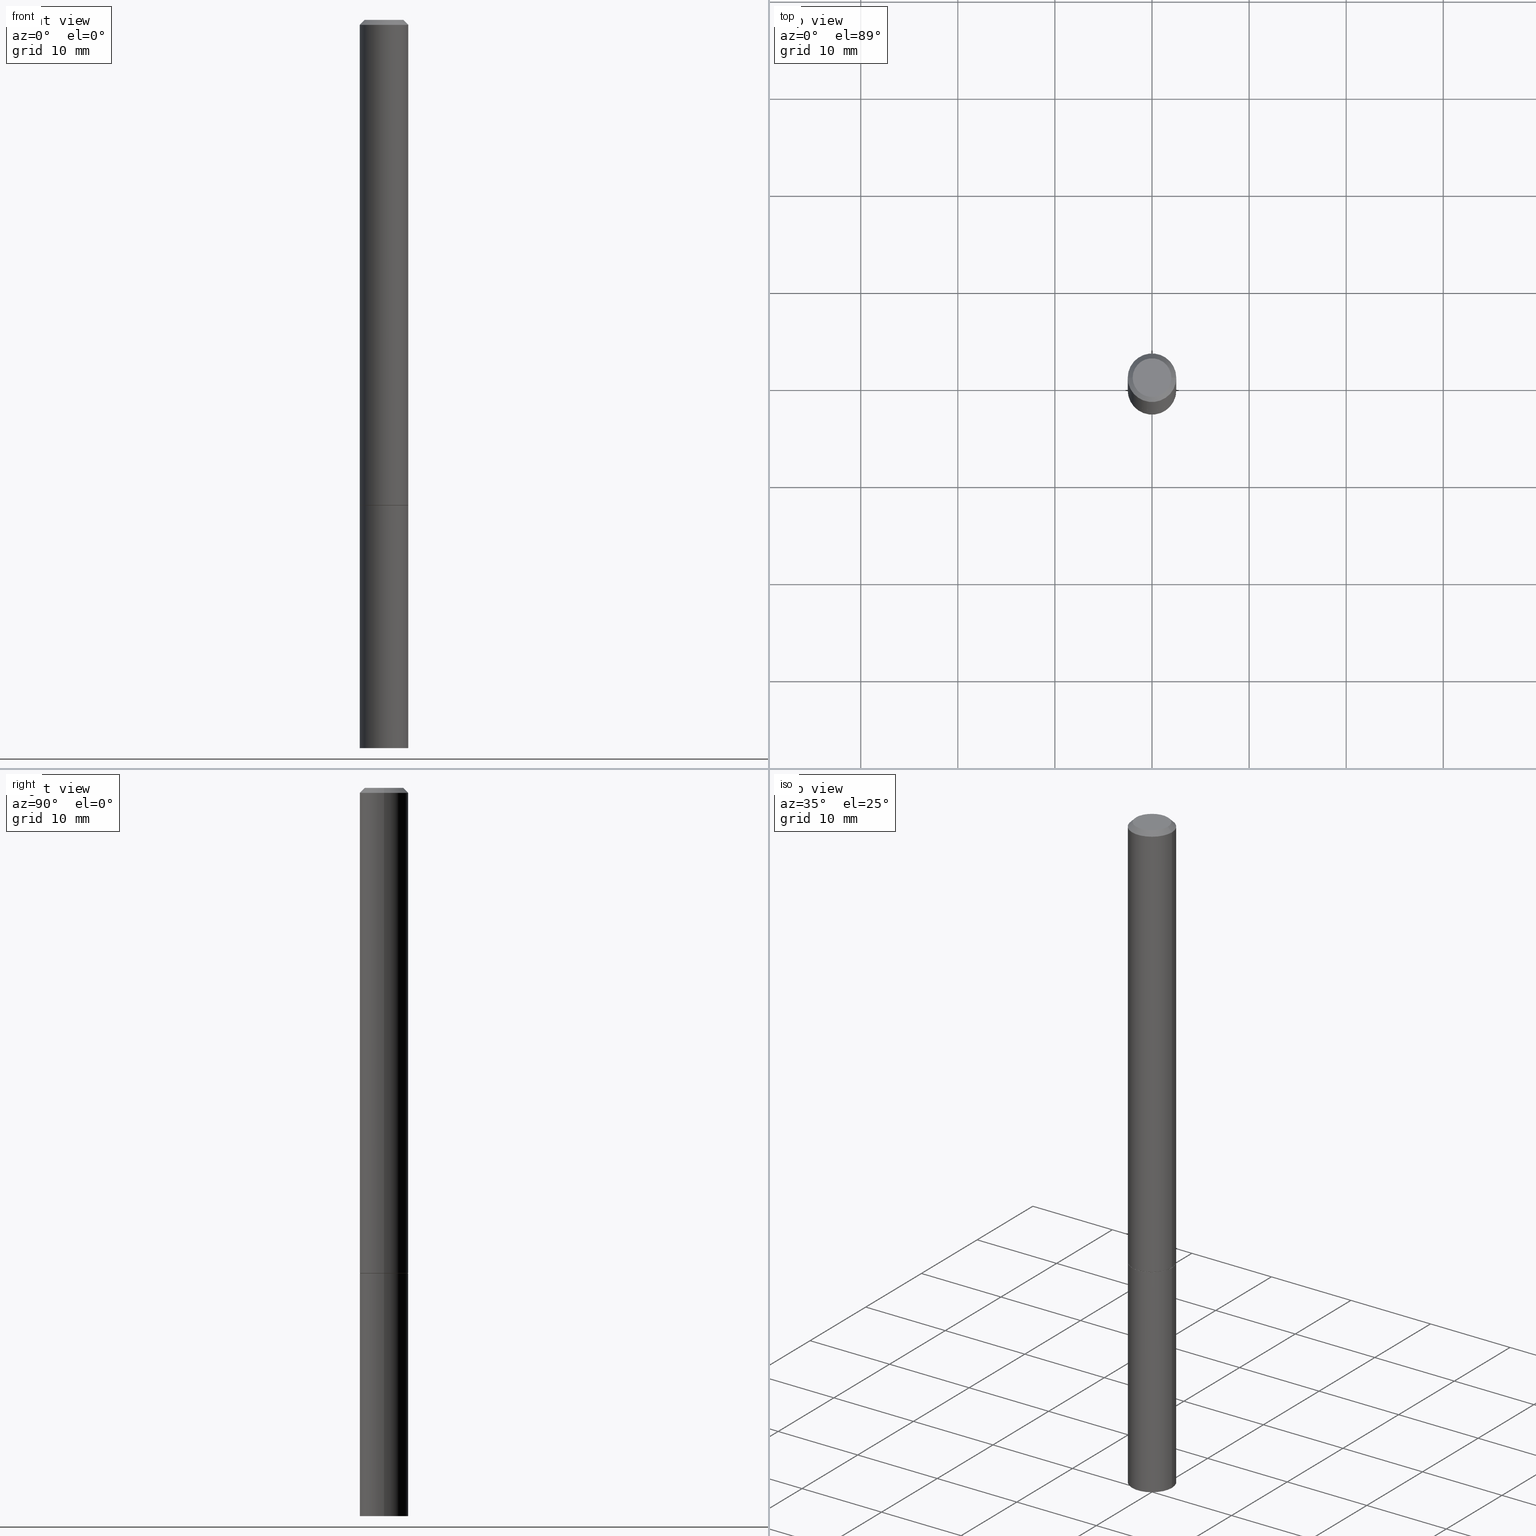
[diagram: canonical four-view strip — front | top / right | iso, engineering-drawing reading convention]
A machine part, canonical four-view strip (front | top / right | iso — engineering-drawing reading convention). The complete STEP part file that produces these views, byte-faithful:
ISO-10303-21;
HEADER;
FILE_DESCRIPTION (( 'STEP AP203' ),
    '1' );
FILE_NAME ('43507.STEP',
    '2024-02-28T04:51:19',
    ( '' ),
    ( '' ),
    'SwSTEP 2.0',
    'SolidWorks 2023',
    '' );
FILE_SCHEMA (( 'CONFIG_CONTROL_DESIGN' ));
ENDSEC;

DATA;
#1 =( NAMED_UNIT ( * ) SI_UNIT ( $, .STERADIAN. ) SOLID_ANGLE_UNIT ( ) );
#2 = ORIENTED_EDGE ( 'NONE', *, *, #101, .T. ) ;
#3 = EDGE_LOOP ( 'NONE', ( #132, #42 ) ) ;
#4 = CARTESIAN_POINT ( 'NONE',  ( 0.07844999999999976992, -6.417258612913216511E-16, -4.268512490096252041E-18 ) ) ;
#5 = DIRECTION ( 'NONE',  ( 1.000000000000000000, -6.982962677686264344E-15, 0.000000000000000000 ) ) ;
#6 = LOCAL_TIME ( 23, 51, 19.00000000000000000, #57 ) ;
#7 = ADVANCED_FACE ( 'NONE', ( #247 ), #28, .T. ) ;
#8 = DIMENSIONAL_EXPONENTS ( 1.000000000000000000, 0.000000000000000000, 0.000000000000000000, 0.000000000000000000, 0.000000000000000000, 0.000000000000000000, 0.000000000000000000 ) ;
#9 = CC_DESIGN_PERSON_AND_ORGANIZATION_ASSIGNMENT ( #170, #281, ( #107 ) ) ;
#10 = CALENDAR_DATE ( 2024, 27, 2 ) ;
#11 = DIRECTION ( 'NONE',  ( 2.438088387897960049E-29, -3.491481338843145188E-15, -1.000000000000000000 ) ) ;
#12 = PERSON_AND_ORGANIZATION ( #191, #80 ) ;
#13 = CYLINDRICAL_SURFACE ( 'NONE', #150, 0.09844999999999987095 ) ;
#14 = ORIENTED_EDGE ( 'NONE', *, *, #158, .F. ) ;
#15 = FACE_OUTER_BOUND ( 'NONE', #280, .T. ) ;
#16 = CIRCLE ( 'NONE', #225, 0.09844999999999999585 ) ;
#17 = PLANE ( 'NONE',  #349 ) ;
#18 = FACE_OUTER_BOUND ( 'NONE', #84, .T. ) ;
#19 = ADVANCED_FACE ( 'NONE', ( #193 ), #277, .T. ) ;
#20 = CARTESIAN_POINT ( 'NONE',  ( 4.813905344975441835E-29, -6.872981015512731707E-15, -1.968500000000000139 ) ) ;
#21 = DIRECTION ( 'NONE',  ( 1.000000000000000000, -6.982962677686266711E-15, 4.876176775795936353E-29 ) ) ;
#22 = VECTOR ( 'NONE', #160, 39.37007874015748143 ) ;
#23 = CARTESIAN_POINT ( 'NONE',  ( -0.09844999999999998197, -2.770130257119553156E-15, -1.967499999999999805 ) ) ;
#24 = DIRECTION ( 'NONE',  ( -2.445468806185136597E-29, 3.491481338843145583E-15, 1.000000000000000000 ) ) ;
#25 = PERSON_AND_ORGANIZATION ( #191, #80 ) ;
#26 = ORIENTED_EDGE ( 'NONE', *, *, #296, .F. ) ;
#27 = APPROVAL_STATUS ( 'not_yet_approved' ) ;
#28 = CYLINDRICAL_SURFACE ( 'NONE', #129, 0.09844999999999999585 ) ;
#29 = ADVANCED_FACE ( 'NONE', ( #318 ), #117, .T. ) ;
#30 = SECURITY_CLASSIFICATION_LEVEL ( 'unclassified' ) ;
#31 = CIRCLE ( 'NONE', #79, 0.09844999999999973217 ) ;
#32 = CARTESIAN_POINT ( 'NONE',  ( 4.813905344975441835E-29, -6.872981015512731707E-15, -1.968500000000000139 ) ) ;
#33 = DIRECTION ( 'NONE',  ( 1.000000000000000000, 0.000000000000000000, 0.000000000000000000 ) ) ;
#34 = MANIFOLD_SOLID_BREP ( 'Body-Move/Copy2[1]', #75 ) ;
#35 = LINE ( 'NONE', #95, #312 ) ;
#36 = AXIS2_PLACEMENT_3D ( 'NONE', #266, #74, #183 ) ;
#37 = EDGE_CURVE ( 'NONE', #53, #201, #44, .T. ) ;
#38 = APPLICATION_CONTEXT ( 'configuration controlled 3d designs of mechanical parts and assemblies' ) ;
#39 = CARTESIAN_POINT ( 'NONE',  ( 0.09844999999999999585, -1.099711877295425267E-14, -2.952799999999999869 ) ) ;
#40 = AXIS2_PLACEMENT_3D ( 'NONE', #20, #356, #155 ) ;
#41 = AXIS2_PLACEMENT_3D ( 'NONE', #32, #116, #63 ) ;
#42 = ORIENTED_EDGE ( 'NONE', *, *, #269, .F. ) ;
#43 = APPROVAL_STATUS ( 'not_yet_approved' ) ;
#44 = LINE ( 'NONE', #205, #187 ) ;
#45 = DIRECTION ( 'NONE',  ( -2.438088387897960049E-29, 3.491481338843145188E-15, 1.000000000000000000 ) ) ;
#46 = DIRECTION ( 'NONE',  ( -0.7071067811865466846, 2.468850131082247989E-15, -0.7071067811865483499 ) ) ;
#47 = AXIS2_PLACEMENT_3D ( 'NONE', #185, #220, #77 ) ;
#48 = DIRECTION ( 'NONE',  ( 1.000000000000000000, -6.982962677686265922E-15, 4.876126812019107680E-29 ) ) ;
#49 = ADVANCED_FACE ( 'NONE', ( #286 ), #127, .T. ) ;
#50 = DIRECTION ( 'NONE',  ( 1.000000000000000000, -6.982962677686274599E-15, 0.000000000000000000 ) ) ;
#51 = EDGE_LOOP ( 'NONE', ( #339, #309 ) ) ;
#52 = DIRECTION ( 'NONE',  ( 1.000000000000000000, -6.982962677686265922E-15, 4.876176775795935793E-29 ) ) ;
#53 = VERTEX_POINT ( 'NONE', #39 ) ;
#54 = CC_DESIGN_APPROVAL ( #260, ( #326 ) ) ;
#55 = ORIENTED_EDGE ( 'NONE', *, *, #96, .F. ) ;
#56 = ADVANCED_BREP_SHAPE_REPRESENTATION ( '43507', ( #34, #140, #270 ), #313 ) ;
#57 = COORDINATED_UNIVERSAL_TIME_OFFSET ( 5, 0, .BEHIND. ) ;
#58 = ORIENTED_EDGE ( 'NONE', *, *, #252, .F. ) ;
#59 = PERSON_AND_ORGANIZATION_ROLE ( 'creator' ) ;
#60 = CC_DESIGN_PERSON_AND_ORGANIZATION_ASSIGNMENT ( #25, #285, ( #71 ) ) ;
#61 = EDGE_LOOP ( 'NONE', ( #161, #88, #164, #26 ) ) ;
#62 = VECTOR ( 'NONE', #46, 39.37007874015748143 ) ;
#63 = DIRECTION ( 'NONE',  ( 1.000000000000000000, -6.982962677686264344E-15, 0.000000000000000000 ) ) ;
#64 = FACE_OUTER_BOUND ( 'NONE', #51, .T. ) ;
#65 = APPROVAL ( #198, 'UNSPECIFIED' ) ;
#66 = DATE_AND_TIME ( #10, #212 ) ;
#67 = EDGE_CURVE ( 'NONE', #265, #90, #184, .T. ) ;
#68 = DIRECTION ( 'NONE',  ( -2.445468806185136597E-29, 3.491481338843145583E-15, 1.000000000000000000 ) ) ;
#69 = AXIS2_PLACEMENT_3D ( 'NONE', #275, #108, #50 ) ;
#70 = LOCAL_TIME ( 23, 51, 19.00000000000000000, #112 ) ;
#71 = PRODUCT_DEFINITION ( 'UNKNOWN', '', #107, #282 ) ;
#72 = ORIENTED_EDGE ( 'NONE', *, *, #269, .T. ) ;
#73 = CALENDAR_DATE ( 2024, 27, 2 ) ;
#74 = DIRECTION ( 'NONE',  ( -2.445468806185136597E-29, 3.491481338843145583E-15, 1.000000000000000000 ) ) ;
#75 = CLOSED_SHELL ( 'NONE', ( #7, #49, #91, #19 ) ) ;
#76 = AXIS2_PLACEMENT_3D ( 'NONE', #162, #186, #137 ) ;
#77 = DIRECTION ( 'NONE',  ( 1.000000000000000000, -6.982962677686274599E-15, 0.000000000000000000 ) ) ;
#78 = CARTESIAN_POINT ( 'NONE',  ( 4.813905344975440714E-29, -6.872981015512730918E-15, -1.968499999999999694 ) ) ;
#79 = AXIS2_PLACEMENT_3D ( 'NONE', #273, #241, #134 ) ;
#80 = ORGANIZATION ( 'UNSPECIFIED', 'UNSPECIFIED', '' ) ;
#81 = CARTESIAN_POINT ( 'NONE',  ( -0.09844999999999999585, 6.995293233558186035E-16, -4.842691596355954042E-30 ) ) ;
#82 = VERTEX_POINT ( 'NONE', #178 ) ;
#83 = PLANE ( 'NONE',  #122 ) ;
#84 = EDGE_LOOP ( 'NONE', ( #299, #2, #14, #229 ) ) ;
#85 = LINE ( 'NONE', #295, #62 ) ;
#86 = VERTEX_POINT ( 'NONE', #231 ) ;
#87 = PERSON_AND_ORGANIZATION ( #191, #80 ) ;
#88 = ORIENTED_EDGE ( 'NONE', *, *, #133, .T. ) ;
#89 = APPROVAL_DATE_TIME ( #340, #65 ) ;
#90 = VERTEX_POINT ( 'NONE', #314 ) ;
#91 = ADVANCED_FACE ( 'NONE', ( #64 ), #258, .F. ) ;
#92 = VECTOR ( 'NONE', #331, 39.37007874015748143 ) ;
#93 = CIRCLE ( 'NONE', #354, 0.09844999999999999585 ) ;
#94 = CC_DESIGN_PERSON_AND_ORGANIZATION_ASSIGNMENT ( #12, #317, ( #326 ) ) ;
#95 = CARTESIAN_POINT ( 'NONE',  ( -0.09744999999999999496, -6.180557119514514605E-15, -1.968500000000000139 ) ) ;
#96 = EDGE_CURVE ( 'NONE', #86, #265, #196, .T. ) ;
#97 = CARTESIAN_POINT ( 'NONE',  ( -0.09844999999999999585, -7.891784233068567007E-15, -1.968499999999999694 ) ) ;
#98 = DIRECTION ( 'NONE',  ( 1.000000000000000000, -6.982962677686266711E-15, 4.876176775795936353E-29 ) ) ;
#99 = CLOSED_SHELL ( 'NONE', ( #291, #29, #105, #321, #124, #173, #307, #152 ) ) ;
#100 = ORIENTED_EDGE ( 'NONE', *, *, #101, .F. ) ;
#101 = EDGE_CURVE ( 'NONE', #86, #267, #35, .T. ) ;
#102 = CARTESIAN_POINT ( 'NONE',  ( 4.890937612370279289E-31, -6.982962677686299005E-17, -0.02000000000000002470 ) ) ;
#103 = LINE ( 'NONE', #214, #236 ) ;
#104 = DIRECTION ( 'NONE',  ( 1.000000000000000000, -6.982962677686265922E-15, 0.000000000000000000 ) ) ;
#105 = ADVANCED_FACE ( 'NONE', ( #323 ), #330, .T. ) ;
#106 = VERTEX_POINT ( 'NONE', #97 ) ;
#107 = PRODUCT_DEFINITION_FORMATION_WITH_SPECIFIED_SOURCE ( 'ANY', '', #288, .NOT_KNOWN. ) ;
#108 = DIRECTION ( 'NONE',  ( -2.445468806185136597E-29, 3.491481338843145583E-15, 1.000000000000000000 ) ) ;
#109 = ORIENTED_EDGE ( 'NONE', *, *, #37, .T. ) ;
#110 = DIRECTION ( 'NONE',  ( -2.445468806185136597E-29, 3.491481338843145583E-15, 1.000000000000000000 ) ) ;
#111 = CARTESIAN_POINT ( 'NONE',  ( 0.000000000000000000, 0.000000000000000000, 0.000000000000000000 ) ) ;
#112 = COORDINATED_UNIVERSAL_TIME_OFFSET ( 5, 0, .BEHIND. ) ;
#113 = ORIENTED_EDGE ( 'NONE', *, *, #37, .F. ) ;
#114 = CARTESIAN_POINT ( 'NONE',  ( -0.09844999999999973217, 6.176430488413481772E-16, -0.02000000000000002470 ) ) ;
#115 = ORIENTED_EDGE ( 'NONE', *, *, #366, .F. ) ;
#116 = DIRECTION ( 'NONE',  ( -2.445468806185136597E-29, 3.491481338843145583E-15, 1.000000000000000000 ) ) ;
#117 = CYLINDRICAL_SURFACE ( 'NONE', #253, 0.09844999999999987095 ) ;
#118 = DATE_TIME_ROLE ( 'creation_date' ) ;
#119 = EDGE_CURVE ( 'NONE', #267, #90, #344, .T. ) ;
#120 = DIRECTION ( 'NONE',  ( -2.445468806185136877E-29, 3.491481338843145188E-15, 1.000000000000000000 ) ) ;
#121 = MECHANICAL_CONTEXT ( 'NONE', #38, 'mechanical' ) ;
#122 = AXIS2_PLACEMENT_3D ( 'NONE', #192, #45, #52 ) ;
#123 = DIRECTION ( 'NONE',  ( 2.445468806185136597E-29, -3.491481338843145583E-15, -1.000000000000000000 ) ) ;
#124 = ADVANCED_FACE ( 'NONE', ( #294 ), #13, .T. ) ;
#125 = CC_DESIGN_PERSON_AND_ORGANIZATION_ASSIGNMENT ( #175, #139, ( #288 ) ) ;
#126 = AXIS2_PLACEMENT_3D ( 'NONE', #111, #24, #223 ) ;
#127 = PLANE ( 'NONE',  #148 ) ;
#128 = LINE ( 'NONE', #81, #245 ) ;
#129 = AXIS2_PLACEMENT_3D ( 'NONE', #274, #254, #21 ) ;
#130 = DIRECTION ( 'NONE',  ( 2.438088387897960049E-29, -3.491481338843145188E-15, -1.000000000000000000 ) ) ;
#131 = DIRECTION ( 'NONE',  ( -1.000000000000000000, 6.982962677686265922E-15, -4.876176775795935793E-29 ) ) ;
#132 = ORIENTED_EDGE ( 'NONE', *, *, #284, .F. ) ;
#133 = EDGE_CURVE ( 'NONE', #359, #365, #327, .T. ) ;
#134 = DIRECTION ( 'NONE',  ( 1.000000000000000000, -6.982962677686266711E-15, 0.000000000000000000 ) ) ;
#135 = ORIENTED_EDGE ( 'NONE', *, *, #284, .T. ) ;
#136 = LOCAL_TIME ( 23, 51, 19.00000000000000000, #209 ) ;
#137 = DIRECTION ( 'NONE',  ( 1.000000000000000000, -6.982962677686265922E-15, 4.876126812019107680E-29 ) ) ;
#138 = VERTEX_POINT ( 'NONE', #303 ) ;
#139 = PERSON_AND_ORGANIZATION_ROLE ( 'design_owner' ) ;
#140 = MANIFOLD_SOLID_BREP ( 'Body-Move/Copy2[2]', #99 ) ;
#141 = ORIENTED_EDGE ( 'NONE', *, *, #296, .T. ) ;
#142 = CARTESIAN_POINT ( 'NONE',  ( 0.000000000000000000, 0.000000000000000000, 0.000000000000000000 ) ) ;
#143 = ORIENTED_EDGE ( 'NONE', *, *, #194, .T. ) ;
#144 = DIRECTION ( 'NONE',  ( -2.445468806185136597E-29, 3.491481338843145583E-15, 1.000000000000000000 ) ) ;
#145 = PERSON_AND_ORGANIZATION ( #191, #80 ) ;
#146 = APPLICATION_CONTEXT ( 'configuration controlled 3d designs of mechanical parts and assemblies' ) ;
#147 = APPLICATION_PROTOCOL_DEFINITION ( 'international standard', 'config_control_design', 1994, #38 ) ;
#148 = AXIS2_PLACEMENT_3D ( 'NONE', #342, #287, #289 ) ;
#149 = PRODUCT_DEFINITION_SHAPE ( 'NONE', 'NONE',  #71 ) ;
#150 = AXIS2_PLACEMENT_3D ( 'NONE', #238, #353, #98 ) ;
#151 = DIRECTION ( 'NONE',  ( 0.7071067811864267805, -2.468850131080992517E-15, 0.7071067811866682540 ) ) ;
#152 = ADVANCED_FACE ( 'NONE', ( #271 ), #17, .F. ) ;
#153 = COORDINATED_UNIVERSAL_TIME_OFFSET ( 5, 0, .BEHIND. ) ;
#154 = DIRECTION ( 'NONE',  ( 1.000000000000000000, -6.982962677686266711E-15, 4.876176775795936353E-29 ) ) ;
#155 = DIRECTION ( 'NONE',  ( 1.000000000000000000, -6.982962677686264344E-15, 0.000000000000000000 ) ) ;
#156 = FACE_OUTER_BOUND ( 'NONE', #279, .T. ) ;
#157 = AXIS2_PLACEMENT_3D ( 'NONE', #298, #244, #48 ) ;
#158 = EDGE_CURVE ( 'NONE', #90, #267, #211, .T. ) ;
#159 = CARTESIAN_POINT ( 'NONE',  ( 4.890937612370279289E-31, -6.982962677686299005E-17, -0.02000000000000002470 ) ) ;
#160 = DIRECTION ( 'NONE',  ( 0.7071067811865466846, -7.319954787623252890E-15, -0.7071067811865483499 ) ) ;
#161 = ORIENTED_EDGE ( 'NONE', *, *, #256, .F. ) ;
#162 = CARTESIAN_POINT ( 'NONE',  ( 1.043851414335219820E-46, -1.490343170380447200E-32, -4.268512490100411279E-18 ) ) ;
#163 = AXIS2_PLACEMENT_3D ( 'NONE', #210, #11, #345 ) ;
#164 = ORIENTED_EDGE ( 'NONE', *, *, #235, .T. ) ;
#165 = CIRCLE ( 'NONE', #76, 0.07844999999999976992 ) ;
#166 = EDGE_CURVE ( 'NONE', #336, #365, #31, .T. ) ;
#167 = EDGE_LOOP ( 'NONE', ( #334, #306, #141, #199 ) ) ;
#168 =( LENGTH_UNIT ( ) NAMED_UNIT ( * ) SI_UNIT ( $, .METRE. ) );
#169 = ORIENTED_EDGE ( 'NONE', *, *, #239, .T. ) ;
#170 = PERSON_AND_ORGANIZATION ( #191, #80 ) ;
#171 = ORIENTED_EDGE ( 'NONE', *, *, #119, .T. ) ;
#172 = CONICAL_SURFACE ( 'NONE', #40, 0.09744999999999999496, 0.7853981633972775267 ) ;
#173 = ADVANCED_FACE ( 'NONE', ( #15 ), #172, .T. ) ;
#174 = CC_DESIGN_APPROVAL ( #301, ( #71 ) ) ;
#175 = PERSON_AND_ORGANIZATION ( #191, #80 ) ;
#176 = DIRECTION ( 'NONE',  ( -2.445468806185136597E-29, 3.491481338843145583E-15, 1.000000000000000000 ) ) ;
#177 = CARTESIAN_POINT ( 'NONE',  ( 4.813905344975440714E-29, -6.872981015512730918E-15, -1.968499999999999694 ) ) ;
#178 = CARTESIAN_POINT ( 'NONE',  ( -0.09844999999999999585, -7.891784233068567007E-15, -2.952799999999999869 ) ) ;
#179 = DATE_AND_TIME ( #73, #136 ) ;
#180 = AXIS2_PLACEMENT_3D ( 'NONE', #102, #110, #222 ) ;
#181 = APPROVAL_DATE_TIME ( #66, #260 ) ;
#182 = CONICAL_SURFACE ( 'NONE', #208, 0.09844999999999973217, 0.7853981633974471688 ) ;
#183 = DIRECTION ( 'NONE',  ( 1.000000000000000000, -6.982962677686265922E-15, 0.000000000000000000 ) ) ;
#184 = LINE ( 'NONE', #213, #325 ) ;
#185 = CARTESIAN_POINT ( 'NONE',  ( 7.220980290903470182E-29, -1.030964609733603853E-14, -2.952799999999999869 ) ) ;
#186 = DIRECTION ( 'NONE',  ( -2.445468806185136597E-29, 3.491481338843145583E-15, 1.000000000000000000 ) ) ;
#187 = VECTOR ( 'NONE', #120, 39.37007874015748143 ) ;
#188 = EDGE_LOOP ( 'NONE', ( #283, #72, #109, #115 ) ) ;
#189 = CARTESIAN_POINT ( 'NONE',  ( -0.09844999999999987095, 6.995293233558177160E-16, -4.842691596355948437E-30 ) ) ;
#190 = EDGE_LOOP ( 'NONE', ( #341, #171, #226, #304 ) ) ;
#191 = PERSON ( 'UNSPECIFIED', 'UNSPECIFIED', 'UNSPECIFIED', ('UNSPECIFIED'), ('UNSPECIFIED'), ('UNSPECIFIED') ) ;
#192 = CARTESIAN_POINT ( 'NONE',  ( 4.813905344975441835E-29, -6.872981015512731707E-15, -1.968500000000000139 ) ) ;
#193 = FACE_OUTER_BOUND ( 'NONE', #188, .T. ) ;
#194 = EDGE_CURVE ( 'NONE', #82, #106, #128, .T. ) ;
#195 = CARTESIAN_POINT ( 'NONE',  ( 0.09844999999999973217, -7.452456546574684343E-16, -0.02000000000000002470 ) ) ;
#196 = CIRCLE ( 'NONE', #263, 0.09744999999999999496 ) ;
#197 = EDGE_LOOP ( 'NONE', ( #243, #249 ) ) ;
#198 = APPROVAL_STATUS ( 'not_yet_approved' ) ;
#199 = ORIENTED_EDGE ( 'NONE', *, *, #166, .T. ) ;
#200 = PERSON_AND_ORGANIZATION ( #191, #80 ) ;
#201 = VERTEX_POINT ( 'NONE', #240 ) ;
#202 = DIRECTION ( 'NONE',  ( 0.000000000000000000, 0.000000000000000000, 1.000000000000000000 ) ) ;
#203 = AXIS2_PLACEMENT_3D ( 'NONE', #362, #333, #335 ) ;
#204 =( CONVERSION_BASED_UNIT ( 'INCH', #305 ) LENGTH_UNIT ( ) NAMED_UNIT ( #8 ) );
#205 = CARTESIAN_POINT ( 'NONE',  ( 0.09844999999999999585, -6.874726756182129545E-16, 4.800596035771099214E-30 ) ) ;
#206 = UNCERTAINTY_MEASURE_WITH_UNIT (LENGTH_MEASURE( 1.000000000000000082E-05 ), #204, 'distance_accuracy_value', 'NONE');
#207 = CIRCLE ( 'NONE', #47, 0.09844999999999999585 ) ;
#208 = AXIS2_PLACEMENT_3D ( 'NONE', #159, #242, #358 ) ;
#209 = COORDINATED_UNIVERSAL_TIME_OFFSET ( 5, 0, .BEHIND. ) ;
#210 = CARTESIAN_POINT ( 'NONE',  ( 6.874726756182609764E-16, 0.09844999999999311247, -1.968500000000000139 ) ) ;
#211 = CIRCLE ( 'NONE', #232, 0.09844999999999999585 ) ;
#212 = LOCAL_TIME ( 23, 51, 19.00000000000000000, #153 ) ;
#213 = CARTESIAN_POINT ( 'NONE',  ( 0.09744999999999999496, -7.553470728453258253E-15, -1.968500000000000139 ) ) ;
#214 = CARTESIAN_POINT ( 'NONE',  ( 0.09844999999999987095, -6.874726756182120670E-16, 4.800596035771092908E-30 ) ) ;
#215 = DIRECTION ( 'NONE',  ( -2.445468806185136877E-29, 3.491481338843145188E-15, 1.000000000000000000 ) ) ;
#216 = DIRECTION ( 'NONE',  ( -2.445468806185136877E-29, 3.491481338843145188E-15, 1.000000000000000000 ) ) ;
#217 = EDGE_CURVE ( 'NONE', #90, #365, #103, .T. ) ;
#218 = CIRCLE ( 'NONE', #69, 0.09844999999999999585 ) ;
#219 = ORIENTED_EDGE ( 'NONE', *, *, #119, .F. ) ;
#220 = DIRECTION ( 'NONE',  ( -2.445468806185136597E-29, 3.491481338843145583E-15, 1.000000000000000000 ) ) ;
#221 = ORIENTED_EDGE ( 'NONE', *, *, #158, .T. ) ;
#222 = DIRECTION ( 'NONE',  ( 1.000000000000000000, -6.982962677686266711E-15, 0.000000000000000000 ) ) ;
#223 = DIRECTION ( 'NONE',  ( 1.000000000000000000, -6.982962677686266711E-15, 4.876176775795936353E-29 ) ) ;
#224 = CALENDAR_DATE ( 2024, 27, 2 ) ;
#225 = AXIS2_PLACEMENT_3D ( 'NONE', #78, #297, #328 ) ;
#226 = ORIENTED_EDGE ( 'NONE', *, *, #217, .T. ) ;
#227 = CC_DESIGN_APPROVAL ( #65, ( #107 ) ) ;
#228 = CALENDAR_DATE ( 2024, 27, 2 ) ;
#229 = ORIENTED_EDGE ( 'NONE', *, *, #67, .F. ) ;
#230 = APPROVAL_ROLE ( '' ) ;
#231 = CARTESIAN_POINT ( 'NONE',  ( -0.09744999999999999496, -6.175258665166291414E-15, -1.968500000000000139 ) ) ;
#232 = AXIS2_PLACEMENT_3D ( 'NONE', #272, #329, #104 ) ;
#233 = CIRCLE ( 'NONE', #41, 0.09744999999999999496 ) ;
#234 = CARTESIAN_POINT ( 'NONE',  ( 4.813905344975441835E-29, -6.872981015512731707E-15, -1.968500000000000139 ) ) ;
#235 = EDGE_CURVE ( 'NONE', #365, #336, #290, .T. ) ;
#236 = VECTOR ( 'NONE', #215, 39.37007874015748143 ) ;
#237 = LOCAL_TIME ( 23, 51, 19.00000000000000000, #278 ) ;
#238 = CARTESIAN_POINT ( 'NONE',  ( 0.000000000000000000, 0.000000000000000000, 0.000000000000000000 ) ) ;
#239 = EDGE_CURVE ( 'NONE', #267, #336, #355, .T. ) ;
#240 = CARTESIAN_POINT ( 'NONE',  ( 0.09844999999999999585, -7.560453691130944267E-15, -1.968499999999999694 ) ) ;
#241 = DIRECTION ( 'NONE',  ( -2.445468806185136597E-29, 3.491481338843145583E-15, 1.000000000000000000 ) ) ;
#242 = DIRECTION ( 'NONE',  ( 2.445468806185136597E-29, -3.491481338843145583E-15, -1.000000000000000000 ) ) ;
#243 = ORIENTED_EDGE ( 'NONE', *, *, #320, .T. ) ;
#244 = DIRECTION ( 'NONE',  ( -2.445468806185136597E-29, 3.491481338843145583E-15, 1.000000000000000000 ) ) ;
#245 = VECTOR ( 'NONE', #216, 39.37007874015748143 ) ;
#246 = APPROVAL_PERSON_ORGANIZATION ( #322, #260, #319 ) ;
#247 = FACE_OUTER_BOUND ( 'NONE', #310, .T. ) ;
#248 = CARTESIAN_POINT ( 'NONE',  ( 0.09844999999999973217, -7.452456546574684343E-16, -0.02000000000000002470 ) ) ;
#249 = ORIENTED_EDGE ( 'NONE', *, *, #256, .T. ) ;
#250 = APPLICATION_PROTOCOL_DEFINITION ( 'international standard', 'config_control_design', 1994, #146 ) ;
#251 = ORIENTED_EDGE ( 'NONE', *, *, #350, .F. ) ;
#252 = EDGE_CURVE ( 'NONE', #201, #106, #16, .T. ) ;
#253 = AXIS2_PLACEMENT_3D ( 'NONE', #255, #68, #154 ) ;
#254 = DIRECTION ( 'NONE',  ( -2.445468806185136597E-29, 3.491481338843145583E-15, 1.000000000000000000 ) ) ;
#255 = CARTESIAN_POINT ( 'NONE',  ( 0.000000000000000000, 0.000000000000000000, 0.000000000000000000 ) ) ;
#256 = EDGE_CURVE ( 'NONE', #359, #138, #293, .T. ) ;
#257 = DIRECTION ( 'NONE',  ( 1.000000000000000000, -6.982962677686265922E-15, 0.000000000000000000 ) ) ;
#258 = PLANE ( 'NONE',  #163 ) ;
#259 = DATE_AND_TIME ( #308, #237 ) ;
#260 = APPROVAL ( #43, 'UNSPECIFIED' ) ;
#261 = DIRECTION ( 'NONE',  ( -0.7071067811864267805, 7.493145998869918709E-15, 0.7071067811866682540 ) ) ;
#262 = CC_DESIGN_SECURITY_CLASSIFICATION ( #326, ( #107 ) ) ;
#263 = AXIS2_PLACEMENT_3D ( 'NONE', #234, #176, #5 ) ;
#264 = DATE_TIME_ROLE ( 'classification_date' ) ;
#265 = VERTEX_POINT ( 'NONE', #300 ) ;
#266 = CARTESIAN_POINT ( 'NONE',  ( 4.811459876169255671E-29, -6.869489534173887122E-15, -1.967499999999999805 ) ) ;
#267 = VERTEX_POINT ( 'NONE', #23 ) ;
#268 = CARTESIAN_POINT ( 'NONE',  ( 5.478134220644859637E-16, 0.07844999999999976992, -2.760409672772941320E-16 ) ) ;
#269 = EDGE_CURVE ( 'NONE', #82, #53, #218, .T. ) ;
#270 = AXIS2_PLACEMENT_3D ( 'NONE', #142, #202, #33 ) ;
#271 = FACE_OUTER_BOUND ( 'NONE', #197, .T. ) ;
#272 = CARTESIAN_POINT ( 'NONE',  ( 4.811459876169255671E-29, -6.869489534173887122E-15, -1.967499999999999805 ) ) ;
#273 = CARTESIAN_POINT ( 'NONE',  ( 4.890937612370279289E-31, -6.982962677686299005E-17, -0.02000000000000002470 ) ) ;
#274 = CARTESIAN_POINT ( 'NONE',  ( 0.000000000000000000, 0.000000000000000000, 0.000000000000000000 ) ) ;
#275 = CARTESIAN_POINT ( 'NONE',  ( 7.220980290903470182E-29, -1.030964609733603853E-14, -2.952799999999999869 ) ) ;
#276 = APPROVAL_PERSON_ORGANIZATION ( #87, #65, #230 ) ;
#277 = CYLINDRICAL_SURFACE ( 'NONE', #126, 0.09844999999999999585 ) ;
#278 = COORDINATED_UNIVERSAL_TIME_OFFSET ( 5, 0, .BEHIND. ) ;
#279 = EDGE_LOOP ( 'NONE', ( #251, #55 ) ) ;
#280 = EDGE_LOOP ( 'NONE', ( #100, #332, #351, #219 ) ) ;
#281 = PERSON_AND_ORGANIZATION_ROLE ( 'design_supplier' ) ;
#282 = DESIGN_CONTEXT ( 'detailed design', #146, 'design' ) ;
#283 = ORIENTED_EDGE ( 'NONE', *, *, #194, .F. ) ;
#284 = EDGE_CURVE ( 'NONE', #53, #82, #207, .T. ) ;
#285 = PERSON_AND_ORGANIZATION_ROLE ( 'creator' ) ;
#286 = FACE_OUTER_BOUND ( 'NONE', #3, .T. ) ;
#287 = DIRECTION ( 'NONE',  ( 2.438088387897960049E-29, -3.491481338843145188E-15, -1.000000000000000000 ) ) ;
#288 = PRODUCT ( '43507', '43507', '', ( #121 ) ) ;
#289 = DIRECTION ( 'NONE',  ( -1.000000000000000000, 6.982962677686265922E-15, -4.876176775795935793E-29 ) ) ;
#290 = CIRCLE ( 'NONE', #180, 0.09844999999999973217 ) ;
#291 = ADVANCED_FACE ( 'NONE', ( #18 ), #360, .T. ) ;
#292 = EDGE_LOOP ( 'NONE', ( #221, #169, #302, #363 ) ) ;
#293 = CIRCLE ( 'NONE', #157, 0.07844999999999976992 ) ;
#294 = FACE_OUTER_BOUND ( 'NONE', #190, .T. ) ;
#295 = CARTESIAN_POINT ( 'NONE',  ( -0.09844999999999973217, 6.176430488413481772E-16, -0.02000000000000002470 ) ) ;
#296 = EDGE_CURVE ( 'NONE', #138, #336, #85, .T. ) ;
#297 = DIRECTION ( 'NONE',  ( -2.445468806185136597E-29, 3.491481338843145583E-15, 1.000000000000000000 ) ) ;
#298 = CARTESIAN_POINT ( 'NONE',  ( 1.043851414335219820E-46, -1.490343170380447200E-32, -4.268512490100411279E-18 ) ) ;
#299 = ORIENTED_EDGE ( 'NONE', *, *, #350, .T. ) ;
#300 = CARTESIAN_POINT ( 'NONE',  ( 0.09744999999999999496, -7.553470728453258253E-15, -1.968500000000000139 ) ) ;
#301 = APPROVAL ( #27, 'UNSPECIFIED' ) ;
#302 = ORIENTED_EDGE ( 'NONE', *, *, #235, .F. ) ;
#303 = CARTESIAN_POINT ( 'NONE',  ( -0.07844999999999976992, 5.827282354529171197E-16, -4.268512490104364828E-18 ) ) ;
#304 = ORIENTED_EDGE ( 'NONE', *, *, #166, .F. ) ;
#305 = LENGTH_MEASURE_WITH_UNIT ( LENGTH_MEASURE( 0.02539999999999999897 ), #168 );
#306 = ORIENTED_EDGE ( 'NONE', *, *, #320, .F. ) ;
#307 = ADVANCED_FACE ( 'NONE', ( #156 ), #83, .F. ) ;
#308 = CALENDAR_DATE ( 2024, 27, 2 ) ;
#309 = ORIENTED_EDGE ( 'NONE', *, *, #366, .T. ) ;
#310 = EDGE_LOOP ( 'NONE', ( #135, #143, #58, #113 ) ) ;
#311 =( NAMED_UNIT ( * ) PLANE_ANGLE_UNIT ( ) SI_UNIT ( $, .RADIAN. ) );
#312 = VECTOR ( 'NONE', #261, 39.37007874015748143 ) ;
#313 =( GEOMETRIC_REPRESENTATION_CONTEXT ( 3 ) GLOBAL_UNCERTAINTY_ASSIGNED_CONTEXT ( ( #206 ) ) GLOBAL_UNIT_ASSIGNED_CONTEXT ( ( #204, #311, #1 ) ) REPRESENTATION_CONTEXT ( 'NONE', 'WORKASPACE' ) );
#314 = CARTESIAN_POINT ( 'NONE',  ( 0.09844999999999999585, -7.556962209792099682E-15, -1.967499999999999805 ) ) ;
#315 = APPROVAL_DATE_TIME ( #259, #301 ) ;
#316 = CARTESIAN_POINT ( 'NONE',  ( 4.890937612370279289E-31, -6.982962677686299005E-17, -0.02000000000000002470 ) ) ;
#317 = PERSON_AND_ORGANIZATION_ROLE ( 'classification_officer' ) ;
#318 = FACE_OUTER_BOUND ( 'NONE', #292, .T. ) ;
#319 = APPROVAL_ROLE ( '' ) ;
#320 = EDGE_CURVE ( 'NONE', #138, #359, #165, .T. ) ;
#321 = ADVANCED_FACE ( 'NONE', ( #364 ), #182, .T. ) ;
#322 = PERSON_AND_ORGANIZATION ( #191, #80 ) ;
#323 = FACE_OUTER_BOUND ( 'NONE', #61, .T. ) ;
#324 = CC_DESIGN_DATE_AND_TIME_ASSIGNMENT ( #179, #264, ( #326 ) ) ;
#325 = VECTOR ( 'NONE', #151, 39.37007874015748143 ) ;
#326 = SECURITY_CLASSIFICATION ( '', '', #30 ) ;
#327 = LINE ( 'NONE', #248, #22 ) ;
#328 = DIRECTION ( 'NONE',  ( 1.000000000000000000, -6.982962677686265922E-15, 0.000000000000000000 ) ) ;
#329 = DIRECTION ( 'NONE',  ( -2.445468806185136597E-29, 3.491481338843145583E-15, 1.000000000000000000 ) ) ;
#330 = CONICAL_SURFACE ( 'NONE', #338, 0.09844999999999973217, 0.7853981633974471688 ) ;
#331 = DIRECTION ( 'NONE',  ( -2.445468806185136877E-29, 3.491481338843145188E-15, 1.000000000000000000 ) ) ;
#332 = ORIENTED_EDGE ( 'NONE', *, *, #96, .T. ) ;
#333 = DIRECTION ( 'NONE',  ( -2.445468806185136597E-29, 3.491481338843145583E-15, 1.000000000000000000 ) ) ;
#334 = ORIENTED_EDGE ( 'NONE', *, *, #133, .F. ) ;
#335 = DIRECTION ( 'NONE',  ( 1.000000000000000000, -6.982962677686264344E-15, 0.000000000000000000 ) ) ;
#336 = VERTEX_POINT ( 'NONE', #114 ) ;
#337 = DATE_AND_TIME ( #224, #70 ) ;
#338 = AXIS2_PLACEMENT_3D ( 'NONE', #316, #123, #352 ) ;
#339 = ORIENTED_EDGE ( 'NONE', *, *, #252, .T. ) ;
#340 = DATE_AND_TIME ( #228, #6 ) ;
#341 = ORIENTED_EDGE ( 'NONE', *, *, #239, .F. ) ;
#342 = CARTESIAN_POINT ( 'NONE',  ( 6.874726756182850367E-16, 0.09844999999998968465, -2.952800000000000313 ) ) ;
#343 = CC_DESIGN_PERSON_AND_ORGANIZATION_ASSIGNMENT ( #200, #59, ( #107 ) ) ;
#344 = CIRCLE ( 'NONE', #36, 0.09844999999999999585 ) ;
#345 = DIRECTION ( 'NONE',  ( -1.000000000000000000, 6.982962677686265922E-15, -4.876176775795935793E-29 ) ) ;
#346 = APPROVAL_ROLE ( '' ) ;
#347 = PRODUCT_RELATED_PRODUCT_CATEGORY ( 'detail', '', ( #288 ) ) ;
#348 = SHAPE_DEFINITION_REPRESENTATION ( #149, #56 ) ;
#349 = AXIS2_PLACEMENT_3D ( 'NONE', #268, #130, #131 ) ;
#350 = EDGE_CURVE ( 'NONE', #265, #86, #233, .T. ) ;
#351 = ORIENTED_EDGE ( 'NONE', *, *, #67, .T. ) ;
#352 = DIRECTION ( 'NONE',  ( -1.000000000000000000, 6.982962677686266711E-15, 0.000000000000000000 ) ) ;
#353 = DIRECTION ( 'NONE',  ( -2.445468806185136597E-29, 3.491481338843145583E-15, 1.000000000000000000 ) ) ;
#354 = AXIS2_PLACEMENT_3D ( 'NONE', #177, #144, #257 ) ;
#355 = LINE ( 'NONE', #189, #92 ) ;
#356 = DIRECTION ( 'NONE',  ( -2.445468806185136597E-29, 3.491481338843145583E-15, 1.000000000000000000 ) ) ;
#357 = CC_DESIGN_DATE_AND_TIME_ASSIGNMENT ( #337, #118, ( #71 ) ) ;
#358 = DIRECTION ( 'NONE',  ( -1.000000000000000000, 6.982962677686266711E-15, 0.000000000000000000 ) ) ;
#359 = VERTEX_POINT ( 'NONE', #4 ) ;
#360 = CONICAL_SURFACE ( 'NONE', #203, 0.09744999999999999496, 0.7853981633972775267 ) ;
#361 = APPROVAL_PERSON_ORGANIZATION ( #145, #301, #346 ) ;
#362 = CARTESIAN_POINT ( 'NONE',  ( 4.813905344975441835E-29, -6.872981015512731707E-15, -1.968500000000000139 ) ) ;
#363 = ORIENTED_EDGE ( 'NONE', *, *, #217, .F. ) ;
#364 = FACE_OUTER_BOUND ( 'NONE', #167, .T. ) ;
#365 = VERTEX_POINT ( 'NONE', #195 ) ;
#366 = EDGE_CURVE ( 'NONE', #106, #201, #93, .T. ) ;
ENDSEC;
END-ISO-10303-21;
